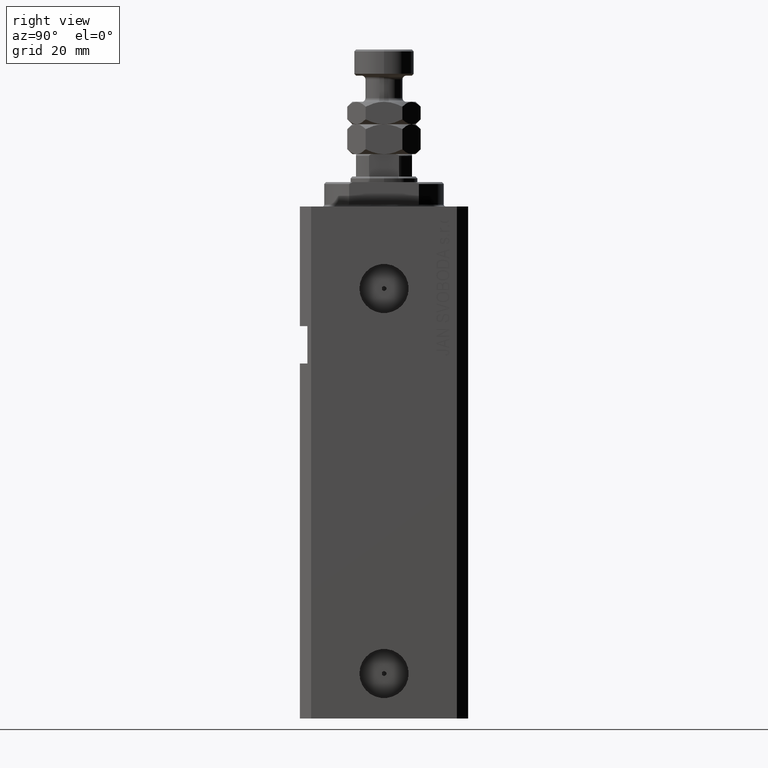
[diagram: clean part render]
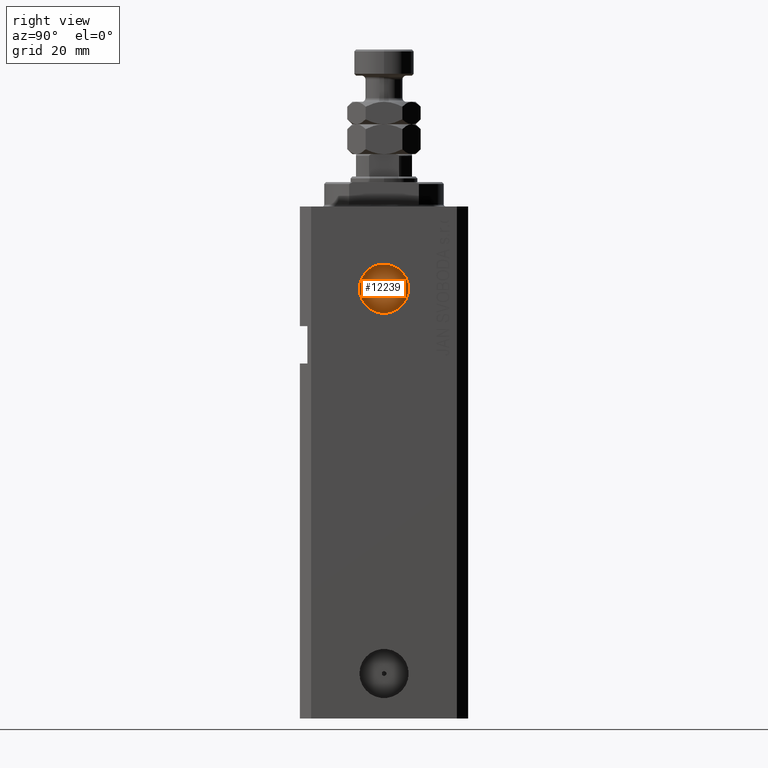
[diagram: same view with one face highlighted and labeled with its STEP entity id]
A machine part, right view. The second image highlights one B-rep face of the part: STEP entity #12239.
In plain terms, the highlighted planar face has unit normal (1, -0, 0).
Its self-contained STEP definition (entity closure, byte-faithful):
#1002 = VERTEX_POINT ( 'NONE', #30852 ) ;
#1464 = EDGE_CURVE ( 'NONE', #7703, #42785, #18814, .T. ) ;
#2125 = CIRCLE ( 'NONE', #7369, 0.6249999999999987788 ) ;
#2240 = AXIS2_PLACEMENT_3D ( 'NONE', #28642, #20867, #43245 ) ;
#4099 = VERTEX_POINT ( 'NONE', #40397 ) ;
#4652 = DIRECTION ( 'NONE',  ( 1.110223024625158749E-14, 1.000000000000000000, 0.000000000000000000 ) ) ;
#4689 = DIRECTION ( 'NONE',  ( 1.000000000000000000, -1.334402673828349134E-14, 0.000000000000000000 ) ) ;
#4811 = ORIENTED_EDGE ( 'NONE', *, *, #12511, .T. ) ;
#6910 = DIRECTION ( 'NONE',  ( 1.110223024625158749E-14, 1.000000000000000000, 0.000000000000000000 ) ) ;
#7369 = AXIS2_PLACEMENT_3D ( 'NONE', #39235, #11158, #6910 ) ;
#7703 = VERTEX_POINT ( 'NONE', #28492 ) ;
#7837 = EDGE_LOOP ( 'NONE', ( #27705, #27479 ) ) ;
#9765 = ORIENTED_EDGE ( 'NONE', *, *, #1464, .T. ) ;
#9852 = FACE_OUTER_BOUND ( 'NONE', #22064, .T. ) ;
#11158 = DIRECTION ( 'NONE',  ( 1.000000000000000000, -1.334402673828349134E-14, 0.000000000000000000 ) ) ;
#12239 = ADVANCED_FACE ( 'NONE', ( #20717, #9852 ), #45236, .T. ) ;
#12390 = AXIS2_PLACEMENT_3D ( 'NONE', #22590, #18607, #4652 ) ;
#12511 = EDGE_CURVE ( 'NONE', #42785, #7703, #32578, .T. ) ;
#16331 = CARTESIAN_POINT ( 'NONE',  ( 19.39999999999668745, -6.580000000000261196, -22.00000000000000000 ) ) ;
#17178 = DIRECTION ( 'NONE',  ( 1.334402673828349134E-14, 1.000000000000000000, 0.000000000000000000 ) ) ;
#18607 = DIRECTION ( 'NONE',  ( 1.000000000000000000, -1.334402673828349134E-14, 0.000000000000000000 ) ) ;
#18814 = CIRCLE ( 'NONE', #2240, 6.580000000000002736 ) ;
#19341 = DIRECTION ( 'NONE',  ( 1.318178933113074700E-14, 1.000000000000000000, 0.000000000000000000 ) ) ;
#20017 = CARTESIAN_POINT ( 'NONE',  ( 19.39999999999677271, -2.588741187226566333E-13, -22.00000000000000000 ) ) ;
#20717 = FACE_BOUND ( 'NONE', #7837, .T. ) ;
#20867 = DIRECTION ( 'NONE',  ( 1.000000000000000000, -1.334402673828349134E-14, 0.000000000000000000 ) ) ;
#21293 = AXIS2_PLACEMENT_3D ( 'NONE', #20017, #34628, #17178 ) ;
#22064 = EDGE_LOOP ( 'NONE', ( #9765, #4811 ) ) ;
#22590 = CARTESIAN_POINT ( 'NONE',  ( 19.39999999999677271, -2.588741187226566838E-13, -22.00000000000000000 ) ) ;
#22858 = CARTESIAN_POINT ( 'NONE',  ( 19.39999999999677271, -2.588741187226566333E-13, -22.00000000000000000 ) ) ;
#25451 = EDGE_CURVE ( 'NONE', #4099, #1002, #46283, .T. ) ;
#27479 = ORIENTED_EDGE ( 'NONE', *, *, #38157, .F. ) ;
#27705 = ORIENTED_EDGE ( 'NONE', *, *, #25451, .F. ) ;
#28492 = CARTESIAN_POINT ( 'NONE',  ( 19.39999999999686153, 6.579999999999744276, -22.00000000000000000 ) ) ;
#28642 = CARTESIAN_POINT ( 'NONE',  ( 19.39999999999677271, -2.588741187226566333E-13, -22.00000000000000000 ) ) ;
#30852 = CARTESIAN_POINT ( 'NONE',  ( 19.39999999999676561, -0.6250000000002576828, -22.00000000000000000 ) ) ;
#32578 = CIRCLE ( 'NONE', #43872, 6.580000000000002736 ) ;
#34628 = DIRECTION ( 'NONE',  ( 1.000000000000000000, -1.334402673828349134E-14, 0.000000000000000000 ) ) ;
#38157 = EDGE_CURVE ( 'NONE', #1002, #4099, #2125, .T. ) ;
#39235 = CARTESIAN_POINT ( 'NONE',  ( 19.39999999999677271, -2.588741187226566838E-13, -22.00000000000000000 ) ) ;
#40397 = CARTESIAN_POINT ( 'NONE',  ( 19.39999999999677982, 0.6249999999997398747, -22.00000000000000000 ) ) ;
#42785 = VERTEX_POINT ( 'NONE', #16331 ) ;
#43245 = DIRECTION ( 'NONE',  ( 1.318178933113074700E-14, 1.000000000000000000, 0.000000000000000000 ) ) ;
#43872 = AXIS2_PLACEMENT_3D ( 'NONE', #22858, #4689, #19341 ) ;
#45236 = PLANE ( 'NONE',  #21293 ) ;
#46283 = CIRCLE ( 'NONE', #12390, 0.6249999999999987788 ) ;